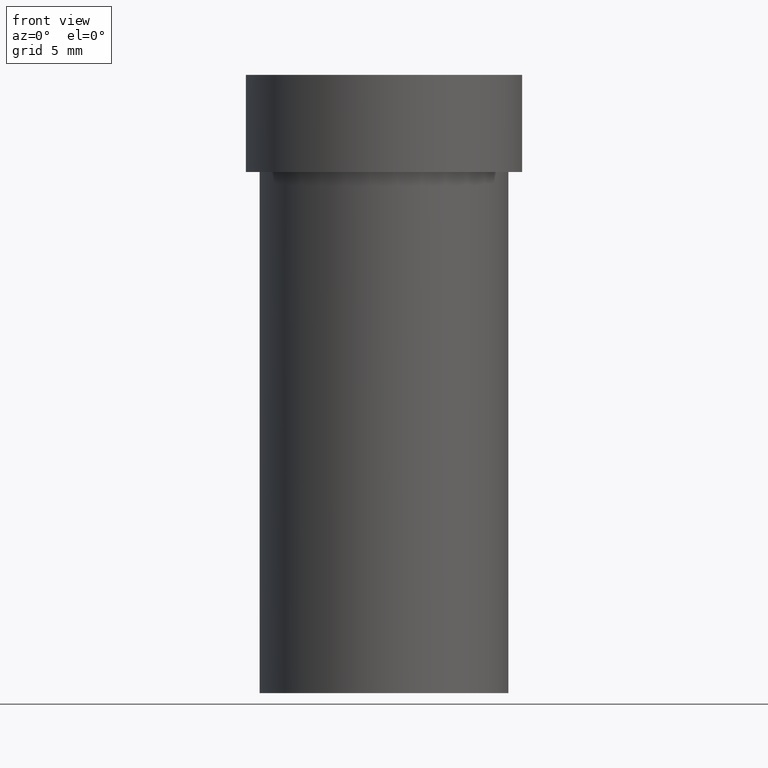
[diagram: clean part render]
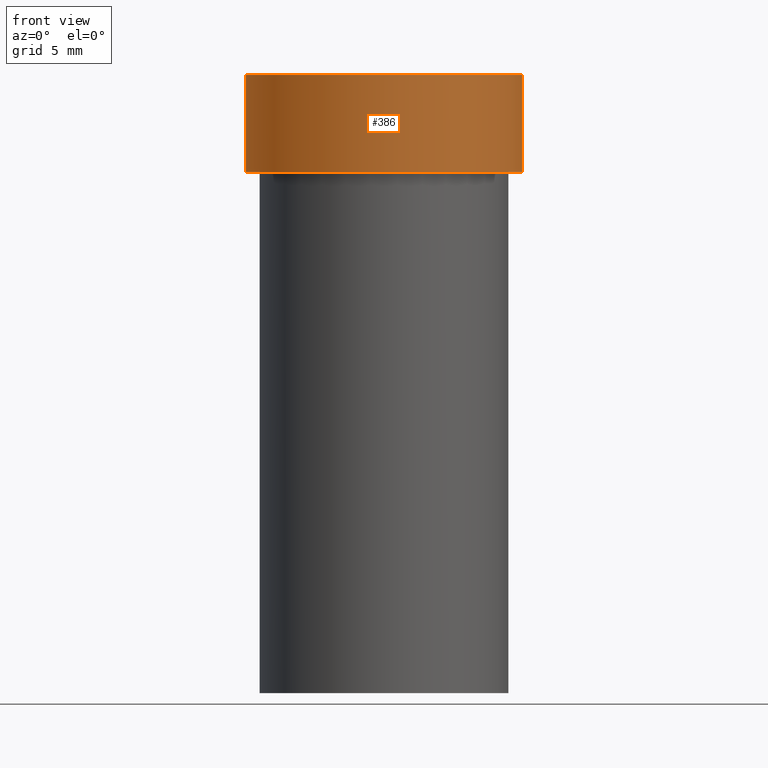
[diagram: same view with one face highlighted and labeled with its STEP entity id]
A machine part, front view. The second image highlights one B-rep face of the part: STEP entity #386.
In plain terms, the highlighted cylindrical surface (partial cylindrical patch) has radius 10 mm, axis along (0, -0, -1).
Its self-contained STEP definition (entity closure, byte-faithful):
#18 = DIRECTION ( 'NONE',  ( 2.445468806185136597E-29, -3.491481338843145583E-15, -1.000000000000000000 ) ) ;
#29 = CARTESIAN_POINT ( 'NONE',  ( 0.3937000000000000499, -2.753350281805299909E-15, -0.01499999999999999944 ) ) ;
#55 = DIRECTION ( 'NONE',  ( -1.000000000000000000, 6.982962677686265922E-15, 0.000000000000000000 ) ) ;
#85 = EDGE_CURVE ( 'NONE', #89, #465, #464, .T. ) ;
#89 = VERTEX_POINT ( 'NONE', #116 ) ;
#91 = CARTESIAN_POINT ( 'NONE',  ( -6.403611670401447787E-30, 9.142660332389533129E-16, 0.2618561992778351555 ) ) ;
#109 = VERTEX_POINT ( 'NONE', #138 ) ;
#116 = CARTESIAN_POINT ( 'NONE',  ( -0.3936999999999999389, 3.711672783926467705E-15, 0.2618561992778351555 ) ) ;
#117 = CARTESIAN_POINT ( 'NONE',  ( -0.3937000000000000499, 2.696820186122435743E-15, -0.01499999999999999944 ) ) ;
#122 = ORIENTED_EDGE ( 'NONE', *, *, #454, .F. ) ;
#138 = CARTESIAN_POINT ( 'NONE',  ( 0.3936999999999999389, -1.834926372966129509E-15, 0.2618561992778351555 ) ) ;
#155 = CARTESIAN_POINT ( 'NONE',  ( 3.668203209277705088E-31, -5.237222008264718399E-17, -0.01499999999999999944 ) ) ;
#165 = CIRCLE ( 'NONE', #244, 0.3937000000000000499 ) ;
#167 = DIRECTION ( 'NONE',  ( -1.000000000000000000, 6.982962677686266711E-15, 0.000000000000000000 ) ) ;
#180 = ORIENTED_EDGE ( 'NONE', *, *, #252, .T. ) ;
#187 = LINE ( 'NONE', #437, #309 ) ;
#195 = ORIENTED_EDGE ( 'NONE', *, *, #238, .F. ) ;
#207 = AXIS2_PLACEMENT_3D ( 'NONE', #208, #460, #278 ) ;
#208 = CARTESIAN_POINT ( 'NONE',  ( 0.000000000000000000, 0.000000000000000000, 0.000000000000000000 ) ) ;
#238 = EDGE_CURVE ( 'NONE', #425, #465, #165, .T. ) ;
#244 = AXIS2_PLACEMENT_3D ( 'NONE', #155, #380, #55 ) ;
#252 = EDGE_CURVE ( 'NONE', #109, #89, #303, .T. ) ;
#278 = DIRECTION ( 'NONE',  ( -1.000000000000000000, 6.982962677686266711E-15, -4.876176775795935793E-29 ) ) ;
#303 = CIRCLE ( 'NONE', #401, 0.3936999999999999389 ) ;
#309 = VECTOR ( 'NONE', #338, 39.37007874015748143 ) ;
#320 = DIRECTION ( 'NONE',  ( 2.445468806185136877E-29, -3.491481338843145188E-15, -1.000000000000000000 ) ) ;
#325 = ORIENTED_EDGE ( 'NONE', *, *, #85, .T. ) ;
#326 = EDGE_LOOP ( 'NONE', ( #122, #180, #325, #195 ) ) ;
#328 = CARTESIAN_POINT ( 'NONE',  ( -0.3936999999999999389, 2.749192406205082822E-15, -1.919750796630859611E-29 ) ) ;
#338 = DIRECTION ( 'NONE',  ( 2.445468806185136877E-29, -3.491481338843145188E-15, -1.000000000000000000 ) ) ;
#378 = FACE_OUTER_BOUND ( 'NONE', #326, .T. ) ;
#380 = DIRECTION ( 'NONE',  ( 2.445468806185136597E-29, -3.491481338843145583E-15, -1.000000000000000000 ) ) ;
#386 = ADVANCED_FACE ( 'NONE', ( #378 ), #453, .T. ) ;
#401 = AXIS2_PLACEMENT_3D ( 'NONE', #91, #18, #167 ) ;
#410 = VECTOR ( 'NONE', #320, 39.37007874015748143 ) ;
#425 = VERTEX_POINT ( 'NONE', #29 ) ;
#437 = CARTESIAN_POINT ( 'NONE',  ( 0.3936999999999999389, -2.700978061722651647E-15, 1.902916848228363047E-29 ) ) ;
#453 = CYLINDRICAL_SURFACE ( 'NONE', #207, 0.3936999999999999389 ) ;
#454 = EDGE_CURVE ( 'NONE', #109, #425, #187, .T. ) ;
#460 = DIRECTION ( 'NONE',  ( 2.445468806185136597E-29, -3.491481338843145583E-15, -1.000000000000000000 ) ) ;
#464 = LINE ( 'NONE', #328, #410 ) ;
#465 = VERTEX_POINT ( 'NONE', #117 ) ;